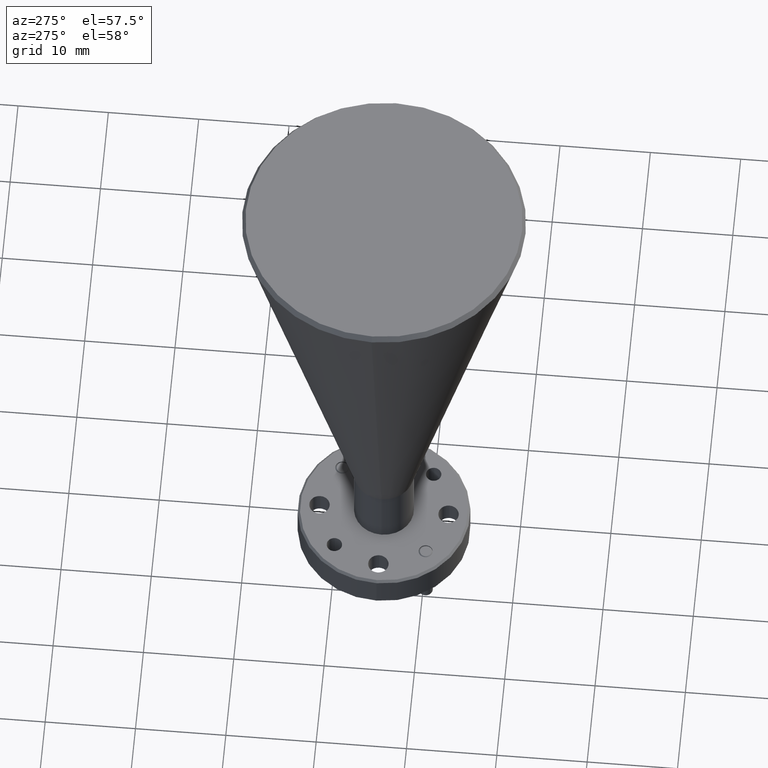
[diagram: clean part render]
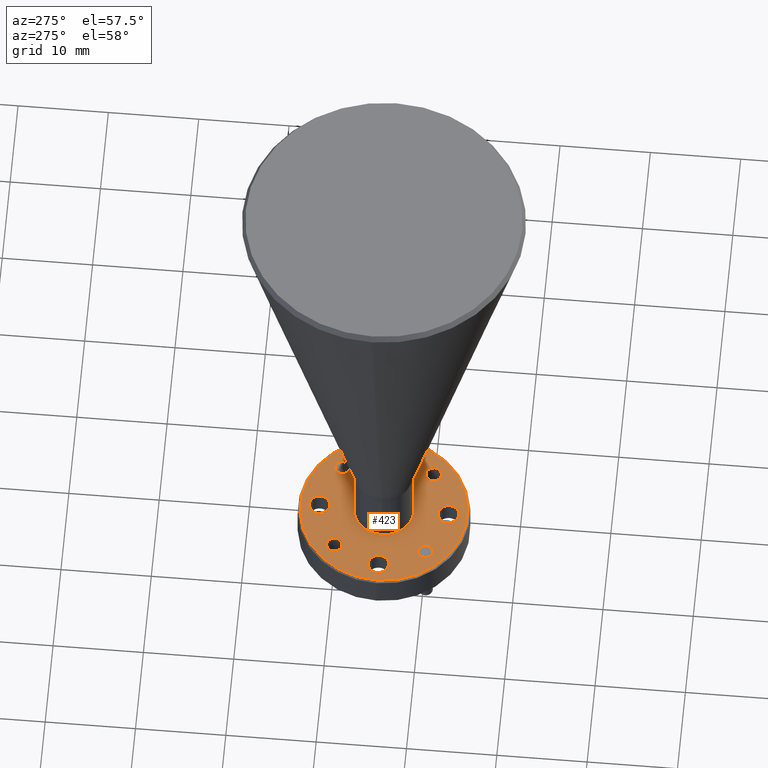
[diagram: same view with one face highlighted and labeled with its STEP entity id]
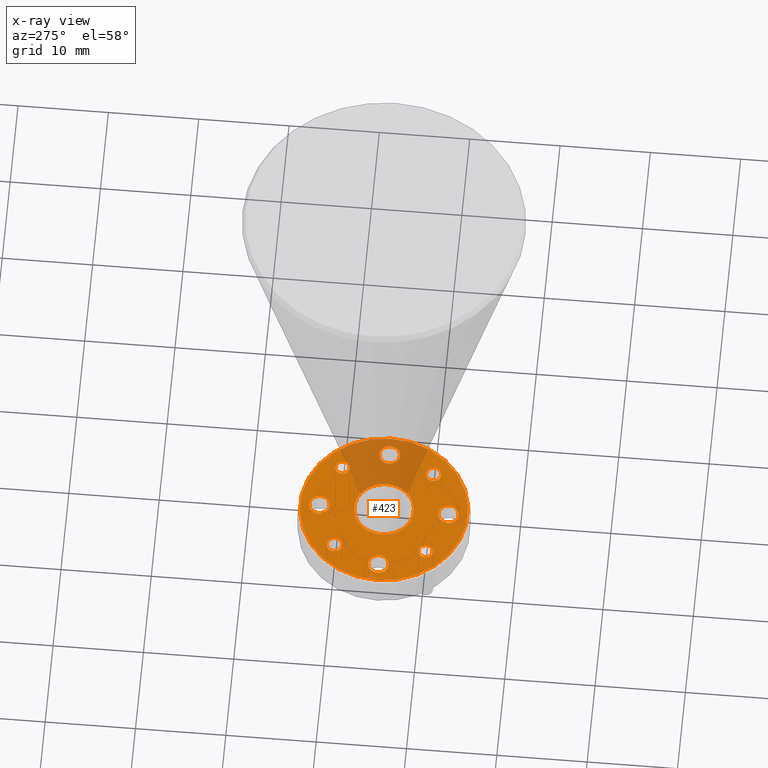
[diagram: x-ray of the same camera — body ghosted, the highlighted face saturated]
A machine part, auxiliary view. The second image highlights one B-rep face of the part: STEP entity #423.
The next image is the same camera in x-ray: the body ghosted, the highlighted face saturated — about 21% of this face is hidden behind the body in this view.
In plain terms, the highlighted planar face has unit normal (0, 0, -1).
Its self-contained STEP definition (entity closure, byte-faithful):
#56 = VERTEX_POINT ( 'NONE', #1212 ) ;
#63 = CARTESIAN_POINT ( 'NONE',  ( -0.4239636095844793173, 1.170860913365209033, 0.3984884289388687661 ) ) ;
#94 = FACE_BOUND ( 'NONE', #992, .T. ) ;
#110 = FACE_BOUND ( 'NONE', #1958, .T. ) ;
#114 = DIRECTION ( 'NONE',  ( 0.000000000000000000, 0.000000000000000000, -1.000000000000000000 ) ) ;
#117 = CARTESIAN_POINT ( 'NONE',  ( -0.3904636095844793986, 1.170860913365209033, 0.3984884289388687661 ) ) ;
#119 = CARTESIAN_POINT ( 'NONE',  ( 0.04078395483295368940, 0.7731133489477758358, 0.3984884289388687661 ) ) ;
#121 = CARTESIAN_POINT ( 'NONE',  ( -0.1915898273757628278, 1.101987131156492383, 0.3984884289388687661 ) ) ;
#129 = CARTESIAN_POINT ( 'NONE',  ( -0.02346604516704628093, 1.170860913365209033, 0.3984884289388687661 ) ) ;
#131 = DIRECTION ( 'NONE',  ( 0.000000000000000000, 0.000000000000000000, -1.000000000000000000 ) ) ;
#132 = AXIS2_PLACEMENT_3D ( 'NONE', #994, #457, #1507 ) ;
#136 = CARTESIAN_POINT ( 'NONE',  ( -0.3569636095844793688, 1.170860913365209033, 0.3984884289388687661 ) ) ;
#148 = DIRECTION ( 'NONE',  ( -1.000000000000000000, 0.000000000000000000, 0.000000000000000000 ) ) ;
#151 = CIRCLE ( 'NONE', #376, 0.04449999999999969258 ) ;
#161 = VERTEX_POINT ( 'NONE', #562 ) ;
#174 = DIRECTION ( 'NONE',  ( -1.000000000000000000, 0.000000000000000000, 0.000000000000000000 ) ) ;
#198 = ORIENTED_EDGE ( 'NONE', *, *, #1757, .T. ) ;
#210 = EDGE_LOOP ( 'NONE', ( #1227, #1764 ) ) ;
#219 = CIRCLE ( 'NONE', #1615, 0.3650000000000008793 ) ;
#230 = VERTEX_POINT ( 'NONE', #2341 ) ;
#236 = EDGE_LOOP ( 'NONE', ( #2130, #284 ) ) ;
#241 = EDGE_CURVE ( 'NONE', #1484, #2291, #1575, .T. ) ;
#250 = AXIS2_PLACEMENT_3D ( 'NONE', #695, #1769, #2155 ) ;
#283 = DIRECTION ( 'NONE',  ( 0.000000000000000000, 0.000000000000000000, -1.000000000000000000 ) ) ;
#284 = ORIENTED_EDGE ( 'NONE', *, *, #1677, .T. ) ;
#288 = ORIENTED_EDGE ( 'NONE', *, *, #478, .T. ) ;
#294 = FACE_BOUND ( 'NONE', #579, .T. ) ;
#308 = CARTESIAN_POINT ( 'NONE',  ( -0.4728398273757628556, 0.9719871311564923788, 0.3984884289388687661 ) ) ;
#351 = DIRECTION ( 'NONE',  ( 0.000000000000000000, 0.000000000000000000, -1.000000000000000000 ) ) ;
#363 = CIRCLE ( 'NONE', #1087, 0.03074999999999993711 ) ;
#369 = VERTEX_POINT ( 'NONE', #136 ) ;
#376 = AXIS2_PLACEMENT_3D ( 'NONE', #1661, #570, #1638 ) ;
#387 = ORIENTED_EDGE ( 'NONE', *, *, #596, .T. ) ;
#423 = ADVANCED_FACE ( 'NONE', ( #1701, #94, #1536, #1385, #2272, #1185, #1899, #1726, #110, #294 ), #1937, .F. ) ;
#428 = DIRECTION ( 'NONE',  ( 0.000000000000000000, 0.000000000000000000, -1.000000000000000000 ) ) ;
#445 = CIRCLE ( 'NONE', #250, 0.04449999999999969258 ) ;
#446 = ORIENTED_EDGE ( 'NONE', *, *, #702, .T. ) ;
#455 = VERTEX_POINT ( 'NONE', #1754 ) ;
#457 = DIRECTION ( 'NONE',  ( -0.000000000000000000, -0.000000000000000000, 1.000000000000000000 ) ) ;
#460 = ORIENTED_EDGE ( 'NONE', *, *, #2103, .T. ) ;
#469 = AXIS2_PLACEMENT_3D ( 'NONE', #1333, #1917, #1016 ) ;
#476 = DIRECTION ( 'NONE',  ( 0.000000000000000000, 0.000000000000000000, -1.000000000000000000 ) ) ;
#478 = EDGE_CURVE ( 'NONE', #962, #455, #445, .T. ) ;
#484 = EDGE_LOOP ( 'NONE', ( #591, #2055 ) ) ;
#493 = DIRECTION ( 'NONE',  ( -1.000000000000000000, 0.000000000000000000, 0.000000000000000000 ) ) ;
#511 = EDGE_CURVE ( 'NONE', #2221, #2066, #1889, .T. ) ;
#515 = CIRCLE ( 'NONE', #1241, 0.04449999999999969258 ) ;
#520 = DIRECTION ( 'NONE',  ( -1.000000000000000000, 0.000000000000000000, 0.000000000000000000 ) ) ;
#525 = EDGE_CURVE ( 'NONE', #2010, #932, #756, .T. ) ;
#528 = DIRECTION ( 'NONE',  ( -1.000000000000000000, 0.000000000000000000, 0.000000000000000000 ) ) ;
#530 = CARTESIAN_POINT ( 'NONE',  ( 0.04516017262423755591, 0.9719871311564923788, 0.3984884289388687661 ) ) ;
#560 = AXIS2_PLACEMENT_3D ( 'NONE', #1979, #351, #1878 ) ;
#562 = CARTESIAN_POINT ( 'NONE',  ( 0.03803395483295366614, 1.170860913365209033, 0.3984884289388687661 ) ) ;
#570 = DIRECTION ( 'NONE',  ( 0.000000000000000000, 0.000000000000000000, -1.000000000000000000 ) ) ;
#579 = EDGE_LOOP ( 'NONE', ( #1222, #1657 ) ) ;
#591 = ORIENTED_EDGE ( 'NONE', *, *, #511, .T. ) ;
#596 = EDGE_CURVE ( 'NONE', #369, #1144, #1581, .T. ) ;
#622 = CARTESIAN_POINT ( 'NONE',  ( -0.1915898273757628278, 0.6907371311564923788, 0.3984884289388687661 ) ) ;
#624 = CIRCLE ( 'NONE', #1949, 0.3650000000000008793 ) ;
#629 = CARTESIAN_POINT ( 'NONE',  ( -0.3597136095844794546, 0.7731133489477758358, 0.3984884289388687661 ) ) ;
#642 = AXIS2_PLACEMENT_3D ( 'NONE', #2137, #131, #2096 ) ;
#644 = CIRCLE ( 'NONE', #952, 0.03349999999999993261 ) ;
#654 = DIRECTION ( 'NONE',  ( -1.000000000000000000, 0.000000000000000000, 0.000000000000000000 ) ) ;
#655 = DIRECTION ( 'NONE',  ( 0.000000000000000000, 0.000000000000000000, -1.000000000000000000 ) ) ;
#695 = CARTESIAN_POINT ( 'NONE',  ( -0.1915898273757628278, 0.6907371311564923788, 0.3984884289388687661 ) ) ;
#701 = ORIENTED_EDGE ( 'NONE', *, *, #241, .T. ) ;
#702 = EDGE_CURVE ( 'NONE', #161, #957, #918, .T. ) ;
#716 = CARTESIAN_POINT ( 'NONE',  ( 0.007283954832953690867, 1.170860913365209033, 0.3984884289388687661 ) ) ;
#756 = CIRCLE ( 'NONE', #2199, 0.04449999999999965788 ) ;
#776 = EDGE_CURVE ( 'NONE', #230, #1164, #151, .T. ) ;
#805 = EDGE_CURVE ( 'NONE', #909, #1505, #219, .T. ) ;
#809 = ORIENTED_EDGE ( 'NONE', *, *, #1196, .T. ) ;
#816 = DIRECTION ( 'NONE',  ( -1.000000000000000000, 0.000000000000000000, 0.000000000000000000 ) ) ;
#845 = CARTESIAN_POINT ( 'NONE',  ( -0.1915898273757628278, 0.9719871311564923788, 0.3984884289388687661 ) ) ;
#862 = CARTESIAN_POINT ( 'NONE',  ( -0.1470898273757631491, 0.6907371311564923788, 0.3984884289388687661 ) ) ;
#879 = AXIS2_PLACEMENT_3D ( 'NONE', #1432, #2325, #148 ) ;
#882 = DIRECTION ( 'NONE',  ( 0.000000000000000000, 0.000000000000000000, -1.000000000000000000 ) ) ;
#900 = EDGE_LOOP ( 'NONE', ( #2186, #1697 ) ) ;
#901 = EDGE_CURVE ( 'NONE', #1144, #369, #644, .T. ) ;
#909 = VERTEX_POINT ( 'NONE', #1382 ) ;
#918 = CIRCLE ( 'NONE', #1729, 0.03074999999999997180 ) ;
#932 = VERTEX_POINT ( 'NONE', #1049 ) ;
#950 = EDGE_CURVE ( 'NONE', #957, #161, #2078, .T. ) ;
#952 = AXIS2_PLACEMENT_3D ( 'NONE', #117, #1696, #654 ) ;
#957 = VERTEX_POINT ( 'NONE', #129 ) ;
#962 = VERTEX_POINT ( 'NONE', #862 ) ;
#965 = DIRECTION ( 'NONE',  ( -1.000000000000000000, 0.000000000000000000, 0.000000000000000000 ) ) ;
#992 = EDGE_LOOP ( 'NONE', ( #2260, #446 ) ) ;
#994 = CARTESIAN_POINT ( 'NONE',  ( -0.1915898273757628278, 0.9719871311564923788, 0.3984884289388693213 ) ) ;
#1007 = AXIS2_PLACEMENT_3D ( 'NONE', #1433, #283, #493 ) ;
#1016 = DIRECTION ( 'NONE',  ( -1.000000000000000000, 0.000000000000000000, 0.000000000000000000 ) ) ;
#1049 = CARTESIAN_POINT ( 'NONE',  ( 0.1341601726242368786, 0.9719871311564923788, 0.3984884289388687661 ) ) ;
#1066 = AXIS2_PLACEMENT_3D ( 'NONE', #716, #1765, #1428 ) ;
#1074 = AXIS2_PLACEMENT_3D ( 'NONE', #2202, #2156, #174 ) ;
#1084 = CIRCLE ( 'NONE', #132, 0.1300000000000000044 ) ;
#1087 = AXIS2_PLACEMENT_3D ( 'NONE', #1871, #428, #816 ) ;
#1129 = VERTEX_POINT ( 'NONE', #629 ) ;
#1134 = CARTESIAN_POINT ( 'NONE',  ( -0.1915898273757628278, 0.9719871311564923788, 0.3984884289388687661 ) ) ;
#1143 = EDGE_CURVE ( 'NONE', #1234, #56, #1084, .T. ) ;
#1144 = VERTEX_POINT ( 'NONE', #63 ) ;
#1164 = VERTEX_POINT ( 'NONE', #1541 ) ;
#1185 = FACE_BOUND ( 'NONE', #484, .T. ) ;
#1196 = EDGE_CURVE ( 'NONE', #932, #2010, #1876, .T. ) ;
#1212 = CARTESIAN_POINT ( 'NONE',  ( -0.3215898273757628045, 0.9719871311564923788, 0.3984884289388693213 ) ) ;
#1222 = ORIENTED_EDGE ( 'NONE', *, *, #1143, .F. ) ;
#1227 = ORIENTED_EDGE ( 'NONE', *, *, #776, .T. ) ;
#1231 = CARTESIAN_POINT ( 'NONE',  ( -0.2360898273757625065, 1.253237131156492268, 0.3984884289388687661 ) ) ;
#1234 = VERTEX_POINT ( 'NONE', #1402 ) ;
#1241 = AXIS2_PLACEMENT_3D ( 'NONE', #308, #476, #2338 ) ;
#1249 = DIRECTION ( 'NONE',  ( -0.000000000000000000, -0.000000000000000000, 1.000000000000000000 ) ) ;
#1252 = AXIS2_PLACEMENT_3D ( 'NONE', #121, #1570, #1525 ) ;
#1291 = CARTESIAN_POINT ( 'NONE',  ( 0.1734101726242380515, 0.9719871311564923788, 0.3984884289388687661 ) ) ;
#1295 = EDGE_CURVE ( 'NONE', #2066, #2221, #1346, .T. ) ;
#1298 = EDGE_CURVE ( 'NONE', #1505, #909, #624, .T. ) ;
#1301 = CIRCLE ( 'NONE', #1703, 0.04449999999999969258 ) ;
#1333 = CARTESIAN_POINT ( 'NONE',  ( 0.08966017262423721379, 0.9719871311564923788, 0.3984884289388687661 ) ) ;
#1346 = CIRCLE ( 'NONE', #1632, 0.04449999999999969258 ) ;
#1382 = CARTESIAN_POINT ( 'NONE',  ( -0.5565898273757636794, 0.9719871311564923788, 0.3984884289388687661 ) ) ;
#1383 = DIRECTION ( 'NONE',  ( -1.000000000000000000, 0.000000000000000000, 0.000000000000000000 ) ) ;
#1385 = FACE_BOUND ( 'NONE', #1663, .T. ) ;
#1402 = CARTESIAN_POINT ( 'NONE',  ( -0.06158982737576283034, 0.9719871311564923788, 0.3984884289388693213 ) ) ;
#1419 = CARTESIAN_POINT ( 'NONE',  ( 0.08966017262423721379, 0.9719871311564923788, 0.3984884289388687661 ) ) ;
#1428 = DIRECTION ( 'NONE',  ( -1.000000000000000000, 0.000000000000000000, 0.000000000000000000 ) ) ;
#1432 = CARTESIAN_POINT ( 'NONE',  ( -0.1915898273757628278, 1.253237131156492268, 0.3984884289388687661 ) ) ;
#1433 = CARTESIAN_POINT ( 'NONE',  ( 0.007283954832953724694, 0.7731133489477758358, 0.3984884289388687661 ) ) ;
#1481 = DIRECTION ( 'NONE',  ( 1.000000000000000000, 0.000000000000000000, 0.000000000000000000 ) ) ;
#1484 = VERTEX_POINT ( 'NONE', #2031 ) ;
#1505 = VERTEX_POINT ( 'NONE', #1291 ) ;
#1506 = EDGE_CURVE ( 'NONE', #56, #1234, #2061, .T. ) ;
#1507 = DIRECTION ( 'NONE',  ( 1.000000000000000000, 0.000000000000000000, 0.000000000000000000 ) ) ;
#1524 = CIRCLE ( 'NONE', #1007, 0.03349999999999996037 ) ;
#1525 = DIRECTION ( 'NONE',  ( -1.000000000000000000, 0.000000000000000000, -0.000000000000000000 ) ) ;
#1536 = FACE_BOUND ( 'NONE', #236, .T. ) ;
#1541 = CARTESIAN_POINT ( 'NONE',  ( -0.4283398273757631491, 0.9719871311564923788, 0.3984884289388687661 ) ) ;
#1544 = CARTESIAN_POINT ( 'NONE',  ( 0.007283954832953690867, 1.170860913365209033, 0.3984884289388687661 ) ) ;
#1570 = DIRECTION ( 'NONE',  ( 0.000000000000000000, 0.000000000000000000, -1.000000000000000000 ) ) ;
#1575 = CIRCLE ( 'NONE', #560, 0.03349999999999996037 ) ;
#1581 = CIRCLE ( 'NONE', #642, 0.03349999999999993261 ) ;
#1587 = EDGE_LOOP ( 'NONE', ( #460, #288 ) ) ;
#1615 = AXIS2_PLACEMENT_3D ( 'NONE', #1134, #1827, #965 ) ;
#1632 = AXIS2_PLACEMENT_3D ( 'NONE', #1980, #114, #520 ) ;
#1638 = DIRECTION ( 'NONE',  ( -1.000000000000000000, 0.000000000000000000, 0.000000000000000000 ) ) ;
#1657 = ORIENTED_EDGE ( 'NONE', *, *, #1506, .F. ) ;
#1661 = CARTESIAN_POINT ( 'NONE',  ( -0.4728398273757628556, 0.9719871311564923788, 0.3984884289388687661 ) ) ;
#1663 = EDGE_LOOP ( 'NONE', ( #2278, #387 ) ) ;
#1676 = DIRECTION ( 'NONE',  ( 0.000000000000000000, 0.000000000000000000, -1.000000000000000000 ) ) ;
#1677 = EDGE_CURVE ( 'NONE', #1129, #1743, #363, .T. ) ;
#1686 = CARTESIAN_POINT ( 'NONE',  ( -0.1470898273757631491, 1.253237131156492268, 0.3984884289388687661 ) ) ;
#1696 = DIRECTION ( 'NONE',  ( 0.000000000000000000, 0.000000000000000000, -1.000000000000000000 ) ) ;
#1697 = ORIENTED_EDGE ( 'NONE', *, *, #1298, .T. ) ;
#1701 = FACE_OUTER_BOUND ( 'NONE', #900, .T. ) ;
#1703 = AXIS2_PLACEMENT_3D ( 'NONE', #622, #1676, #2257 ) ;
#1726 = FACE_BOUND ( 'NONE', #1587, .T. ) ;
#1729 = AXIS2_PLACEMENT_3D ( 'NONE', #1544, #655, #1383 ) ;
#1736 = EDGE_CURVE ( 'NONE', #1164, #230, #515, .T. ) ;
#1743 = VERTEX_POINT ( 'NONE', #2129 ) ;
#1754 = CARTESIAN_POINT ( 'NONE',  ( -0.2360898273757625065, 0.6907371311564923788, 0.3984884289388687661 ) ) ;
#1757 = EDGE_CURVE ( 'NONE', #2291, #1484, #1524, .T. ) ;
#1764 = ORIENTED_EDGE ( 'NONE', *, *, #1736, .T. ) ;
#1765 = DIRECTION ( 'NONE',  ( 0.000000000000000000, 0.000000000000000000, -1.000000000000000000 ) ) ;
#1769 = DIRECTION ( 'NONE',  ( 0.000000000000000000, 0.000000000000000000, -1.000000000000000000 ) ) ;
#1773 = ORIENTED_EDGE ( 'NONE', *, *, #525, .T. ) ;
#1827 = DIRECTION ( 'NONE',  ( -0.000000000000000000, -0.000000000000000000, 1.000000000000000000 ) ) ;
#1871 = CARTESIAN_POINT ( 'NONE',  ( -0.3904636095844793986, 0.7731133489477758358, 0.3984884289388687661 ) ) ;
#1876 = CIRCLE ( 'NONE', #469, 0.04449999999999965788 ) ;
#1878 = DIRECTION ( 'NONE',  ( -1.000000000000000000, 0.000000000000000000, 0.000000000000000000 ) ) ;
#1889 = CIRCLE ( 'NONE', #879, 0.04449999999999969258 ) ;
#1899 = FACE_BOUND ( 'NONE', #210, .T. ) ;
#1901 = CIRCLE ( 'NONE', #1074, 0.03074999999999993711 ) ;
#1917 = DIRECTION ( 'NONE',  ( 0.000000000000000000, 0.000000000000000000, -1.000000000000000000 ) ) ;
#1937 = PLANE ( 'NONE',  #1252 ) ;
#1949 = AXIS2_PLACEMENT_3D ( 'NONE', #845, #1249, #2316 ) ;
#1958 = EDGE_LOOP ( 'NONE', ( #1773, #809 ) ) ;
#1979 = CARTESIAN_POINT ( 'NONE',  ( 0.007283954832953724694, 0.7731133489477758358, 0.3984884289388687661 ) ) ;
#1980 = CARTESIAN_POINT ( 'NONE',  ( -0.1915898273757628278, 1.253237131156492268, 0.3984884289388687661 ) ) ;
#2007 = DIRECTION ( 'NONE',  ( -0.000000000000000000, -0.000000000000000000, 1.000000000000000000 ) ) ;
#2010 = VERTEX_POINT ( 'NONE', #530 ) ;
#2025 = EDGE_CURVE ( 'NONE', #1743, #1129, #1901, .T. ) ;
#2031 = CARTESIAN_POINT ( 'NONE',  ( -0.02621604516704623827, 0.7731133489477758358, 0.3984884289388687661 ) ) ;
#2055 = ORIENTED_EDGE ( 'NONE', *, *, #1295, .T. ) ;
#2061 = CIRCLE ( 'NONE', #2254, 0.1300000000000000044 ) ;
#2066 = VERTEX_POINT ( 'NONE', #1686 ) ;
#2078 = CIRCLE ( 'NONE', #1066, 0.03074999999999997180 ) ;
#2096 = DIRECTION ( 'NONE',  ( -1.000000000000000000, 0.000000000000000000, 0.000000000000000000 ) ) ;
#2103 = EDGE_CURVE ( 'NONE', #455, #962, #1301, .T. ) ;
#2129 = CARTESIAN_POINT ( 'NONE',  ( -0.4212136095844792871, 0.7731133489477758358, 0.3984884289388687661 ) ) ;
#2130 = ORIENTED_EDGE ( 'NONE', *, *, #2025, .T. ) ;
#2137 = CARTESIAN_POINT ( 'NONE',  ( -0.3904636095844793986, 1.170860913365209033, 0.3984884289388687661 ) ) ;
#2155 = DIRECTION ( 'NONE',  ( -1.000000000000000000, 0.000000000000000000, 0.000000000000000000 ) ) ;
#2156 = DIRECTION ( 'NONE',  ( 0.000000000000000000, 0.000000000000000000, -1.000000000000000000 ) ) ;
#2186 = ORIENTED_EDGE ( 'NONE', *, *, #805, .T. ) ;
#2193 = CARTESIAN_POINT ( 'NONE',  ( -0.1915898273757628278, 0.9719871311564923788, 0.3984884289388693213 ) ) ;
#2199 = AXIS2_PLACEMENT_3D ( 'NONE', #1419, #882, #528 ) ;
#2202 = CARTESIAN_POINT ( 'NONE',  ( -0.3904636095844793986, 0.7731133489477758358, 0.3984884289388687661 ) ) ;
#2221 = VERTEX_POINT ( 'NONE', #1231 ) ;
#2254 = AXIS2_PLACEMENT_3D ( 'NONE', #2193, #2007, #1481 ) ;
#2257 = DIRECTION ( 'NONE',  ( -1.000000000000000000, 0.000000000000000000, 0.000000000000000000 ) ) ;
#2260 = ORIENTED_EDGE ( 'NONE', *, *, #950, .T. ) ;
#2265 = EDGE_LOOP ( 'NONE', ( #701, #198 ) ) ;
#2272 = FACE_BOUND ( 'NONE', #2265, .T. ) ;
#2278 = ORIENTED_EDGE ( 'NONE', *, *, #901, .T. ) ;
#2291 = VERTEX_POINT ( 'NONE', #119 ) ;
#2316 = DIRECTION ( 'NONE',  ( -1.000000000000000000, 0.000000000000000000, 0.000000000000000000 ) ) ;
#2325 = DIRECTION ( 'NONE',  ( 0.000000000000000000, 0.000000000000000000, -1.000000000000000000 ) ) ;
#2338 = DIRECTION ( 'NONE',  ( -1.000000000000000000, 0.000000000000000000, 0.000000000000000000 ) ) ;
#2341 = CARTESIAN_POINT ( 'NONE',  ( -0.5173398273757625621, 0.9719871311564923788, 0.3984884289388687661 ) ) ;